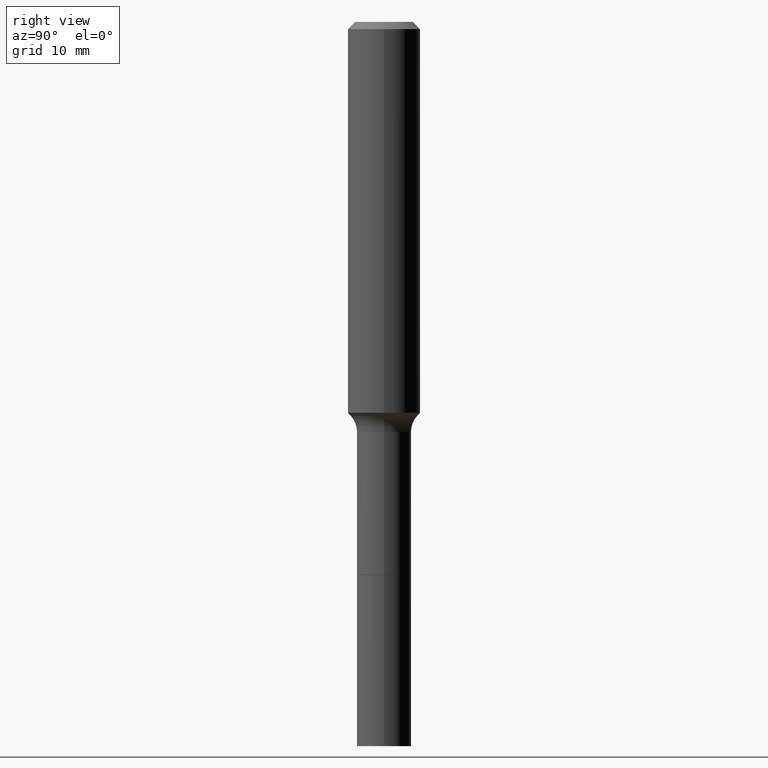
[diagram: clean part render]
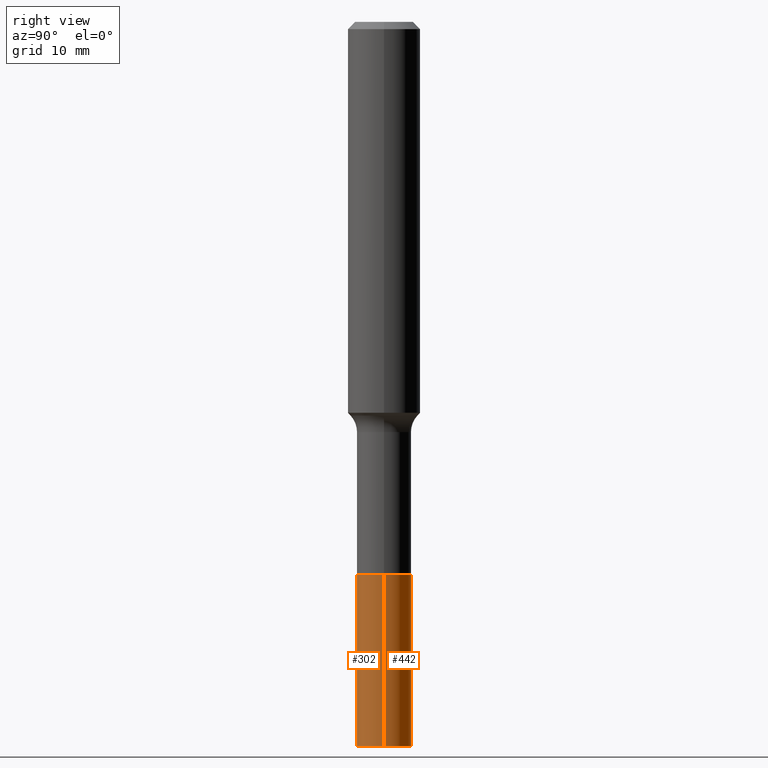
[diagram: same view with one multi-face feature highlighted, each face labeled with its STEP entity id]
A machine part, right view. The highlighted faces form ONE feature: a constant-radius fillet chain: 2 tangent blend faces with common blend radius 2.2504 mm. The faces share edges in the B-rep.
Their STEP definitions:
[1] entity #442 (Cylinder):
#5 = AXIS2_PLACEMENT_3D ( 'NONE', #78, #158, #283 ) ;
#12 = CARTESIAN_POINT ( 'NONE',  ( -0.08860000000000010922, -6.642167320525169260E-15, -2.362200000000000077 ) ) ;
#16 = CARTESIAN_POINT ( 'NONE',  ( 4.409669351313038346E-29, -6.295839150201959750E-15, -1.803200000000000136 ) ) ;
#17 = ORIENTED_EDGE ( 'NONE', *, *, #433, .F. ) ;
#42 = VERTEX_POINT ( 'NONE', #485 ) ;
#44 = VECTOR ( 'NONE', #382, 39.37007874015748143 ) ;
#52 = VERTEX_POINT ( 'NONE', #12 ) ;
#76 = ORIENTED_EDGE ( 'NONE', *, *, #503, .T. ) ;
#78 = CARTESIAN_POINT ( 'NONE',  ( 5.776686413970529753E-29, -8.247577218615279626E-15, -2.362200000000000077 ) ) ;
#79 = ORIENTED_EDGE ( 'NONE', *, *, #346, .F. ) ;
#96 = DIRECTION ( 'NONE',  ( 1.000000000000000000, -6.982962677686263555E-15, 0.000000000000000000 ) ) ;
#120 = DIRECTION ( 'NONE',  ( 1.000000000000000000, -6.982962677686269077E-15, 0.000000000000000000 ) ) ;
#133 = EDGE_LOOP ( 'NONE', ( #76, #135, #17, #79 ) ) ;
#135 = ORIENTED_EDGE ( 'NONE', *, *, #492, .T. ) ;
#158 = DIRECTION ( 'NONE',  ( -2.445468806185136597E-29, 3.491481338843145583E-15, 1.000000000000000000 ) ) ;
#159 = CARTESIAN_POINT ( 'NONE',  ( 4.409669351313038346E-29, -6.295839150201959750E-15, -1.803200000000000136 ) ) ;
#162 = CARTESIAN_POINT ( 'NONE',  ( -0.08860000000000006759, -5.666298286318510111E-15, -1.803200000000000136 ) ) ;
#190 = CARTESIAN_POINT ( 'NONE',  ( -0.08859999999999999820, -6.642167320525170049E-15, -1.803200000000000136 ) ) ;
#201 = LINE ( 'NONE', #162, #204 ) ;
#204 = VECTOR ( 'NONE', #347, 39.37007874015748143 ) ;
#223 = LINE ( 'NONE', #374, #44 ) ;
#239 = CIRCLE ( 'NONE', #396, 0.08859999999999999820 ) ;
#268 = CARTESIAN_POINT ( 'NONE',  ( 0.08859999999999999820, -6.914529643444963492E-15, -1.803200000000000136 ) ) ;
#273 = CIRCLE ( 'NONE', #5, 0.08860000000000013698 ) ;
#283 = DIRECTION ( 'NONE',  ( 1.000000000000000000, -6.982962677686258033E-15, 0.000000000000000000 ) ) ;
#293 = DIRECTION ( 'NONE',  ( -2.445468806185136597E-29, 3.491481338843145583E-15, 1.000000000000000000 ) ) ;
#346 = EDGE_CURVE ( 'NONE', #42, #497, #223, .T. ) ;
#347 = DIRECTION ( 'NONE',  ( -2.445468806185136877E-29, 3.491481338843145188E-15, 1.000000000000000000 ) ) ;
#349 = DIRECTION ( 'NONE',  ( -2.445468806185136597E-29, 3.491481338843145583E-15, 1.000000000000000000 ) ) ;
#354 = AXIS2_PLACEMENT_3D ( 'NONE', #16, #293, #96 ) ;
#367 = CYLINDRICAL_SURFACE ( 'NONE', #354, 0.08860000000000006759 ) ;
#374 = CARTESIAN_POINT ( 'NONE',  ( 0.08860000000000006759, -6.914529643444963492E-15, -1.803200000000000136 ) ) ;
#382 = DIRECTION ( 'NONE',  ( -2.445468806185136877E-29, 3.491481338843145188E-15, 1.000000000000000000 ) ) ;
#392 = VERTEX_POINT ( 'NONE', #190 ) ;
#396 = AXIS2_PLACEMENT_3D ( 'NONE', #159, #349, #120 ) ;
#433 = EDGE_CURVE ( 'NONE', #497, #392, #239, .T. ) ;
#442 = ADVANCED_FACE ( 'NONE', ( #455 ), #367, .T. ) ;
#455 = FACE_OUTER_BOUND ( 'NONE', #133, .T. ) ;
#485 = CARTESIAN_POINT ( 'NONE',  ( 0.08860000000000013698, -8.866267711858282579E-15, -2.362200000000000077 ) ) ;
#492 = EDGE_CURVE ( 'NONE', #52, #392, #201, .T. ) ;
#497 = VERTEX_POINT ( 'NONE', #268 ) ;
#503 = EDGE_CURVE ( 'NONE', #42, #52, #273, .T. ) ;
[2] entity #302 (Cylinder):
#10 = DIRECTION ( 'NONE',  ( 1.000000000000000000, -6.982962677686269077E-15, 0.000000000000000000 ) ) ;
#12 = CARTESIAN_POINT ( 'NONE',  ( -0.08860000000000010922, -6.642167320525169260E-15, -2.362200000000000077 ) ) ;
#41 = ORIENTED_EDGE ( 'NONE', *, *, #346, .T. ) ;
#42 = VERTEX_POINT ( 'NONE', #485 ) ;
#44 = VECTOR ( 'NONE', #382, 39.37007874015748143 ) ;
#46 = EDGE_CURVE ( 'NONE', #392, #497, #356, .T. ) ;
#52 = VERTEX_POINT ( 'NONE', #12 ) ;
#53 = DIRECTION ( 'NONE',  ( -2.445468806185136597E-29, 3.491481338843145583E-15, 1.000000000000000000 ) ) ;
#63 = CARTESIAN_POINT ( 'NONE',  ( 5.776686413970529753E-29, -8.247577218615279626E-15, -2.362200000000000077 ) ) ;
#83 = AXIS2_PLACEMENT_3D ( 'NONE', #63, #175, #220 ) ;
#84 = CARTESIAN_POINT ( 'NONE',  ( 4.409669351313038346E-29, -6.295839150201959750E-15, -1.803200000000000136 ) ) ;
#140 = AXIS2_PLACEMENT_3D ( 'NONE', #84, #53, #10 ) ;
#143 = DIRECTION ( 'NONE',  ( -2.445468806185136597E-29, 3.491481338843145583E-15, 1.000000000000000000 ) ) ;
#162 = CARTESIAN_POINT ( 'NONE',  ( -0.08860000000000006759, -5.666298286318510111E-15, -1.803200000000000136 ) ) ;
#175 = DIRECTION ( 'NONE',  ( -2.445468806185136597E-29, 3.491481338843145583E-15, 1.000000000000000000 ) ) ;
#179 = CARTESIAN_POINT ( 'NONE',  ( 4.409669351313038346E-29, -6.295839150201959750E-15, -1.803200000000000136 ) ) ;
#190 = CARTESIAN_POINT ( 'NONE',  ( -0.08859999999999999820, -6.642167320525170049E-15, -1.803200000000000136 ) ) ;
#197 = ORIENTED_EDGE ( 'NONE', *, *, #46, .F. ) ;
#201 = LINE ( 'NONE', #162, #204 ) ;
#204 = VECTOR ( 'NONE', #347, 39.37007874015748143 ) ;
#220 = DIRECTION ( 'NONE',  ( 1.000000000000000000, -6.982962677686258033E-15, 0.000000000000000000 ) ) ;
#223 = LINE ( 'NONE', #374, #44 ) ;
#246 = CIRCLE ( 'NONE', #83, 0.08860000000000013698 ) ;
#261 = CYLINDRICAL_SURFACE ( 'NONE', #408, 0.08860000000000006759 ) ;
#268 = CARTESIAN_POINT ( 'NONE',  ( 0.08859999999999999820, -6.914529643444963492E-15, -1.803200000000000136 ) ) ;
#302 = ADVANCED_FACE ( 'NONE', ( #334 ), #261, .T. ) ;
#334 = FACE_OUTER_BOUND ( 'NONE', #391, .T. ) ;
#346 = EDGE_CURVE ( 'NONE', #42, #497, #223, .T. ) ;
#347 = DIRECTION ( 'NONE',  ( -2.445468806185136877E-29, 3.491481338843145188E-15, 1.000000000000000000 ) ) ;
#356 = CIRCLE ( 'NONE', #140, 0.08859999999999999820 ) ;
#374 = CARTESIAN_POINT ( 'NONE',  ( 0.08860000000000006759, -6.914529643444963492E-15, -1.803200000000000136 ) ) ;
#382 = DIRECTION ( 'NONE',  ( -2.445468806185136877E-29, 3.491481338843145188E-15, 1.000000000000000000 ) ) ;
#391 = EDGE_LOOP ( 'NONE', ( #434, #491, #41, #197 ) ) ;
#392 = VERTEX_POINT ( 'NONE', #190 ) ;
#408 = AXIS2_PLACEMENT_3D ( 'NONE', #179, #143, #506 ) ;
#434 = ORIENTED_EDGE ( 'NONE', *, *, #492, .F. ) ;
#485 = CARTESIAN_POINT ( 'NONE',  ( 0.08860000000000013698, -8.866267711858282579E-15, -2.362200000000000077 ) ) ;
#491 = ORIENTED_EDGE ( 'NONE', *, *, #514, .T. ) ;
#492 = EDGE_CURVE ( 'NONE', #52, #392, #201, .T. ) ;
#497 = VERTEX_POINT ( 'NONE', #268 ) ;
#506 = DIRECTION ( 'NONE',  ( 1.000000000000000000, -6.982962677686263555E-15, 0.000000000000000000 ) ) ;
#514 = EDGE_CURVE ( 'NONE', #52, #42, #246, .T. ) ;